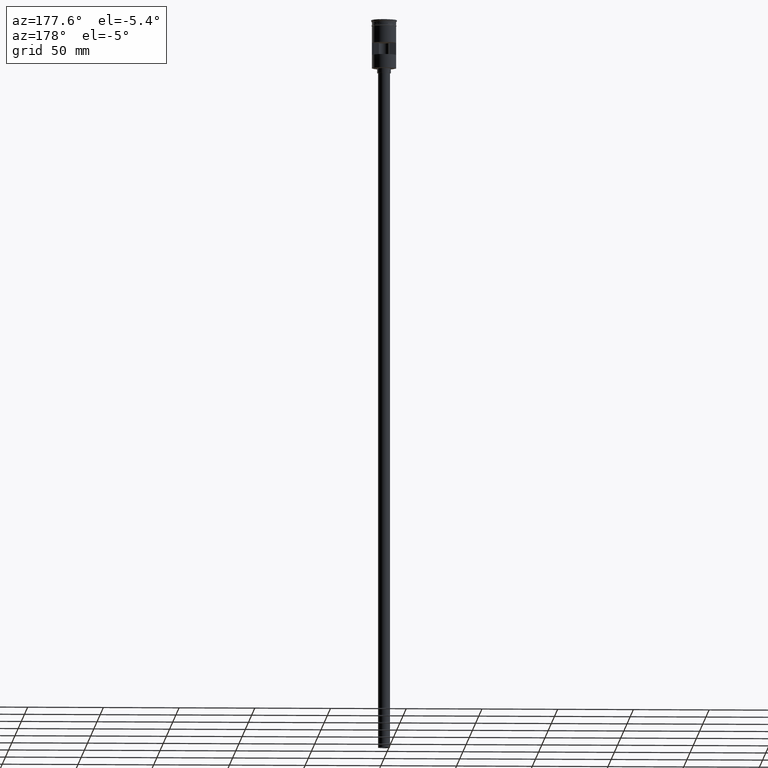
[diagram: clean part render]
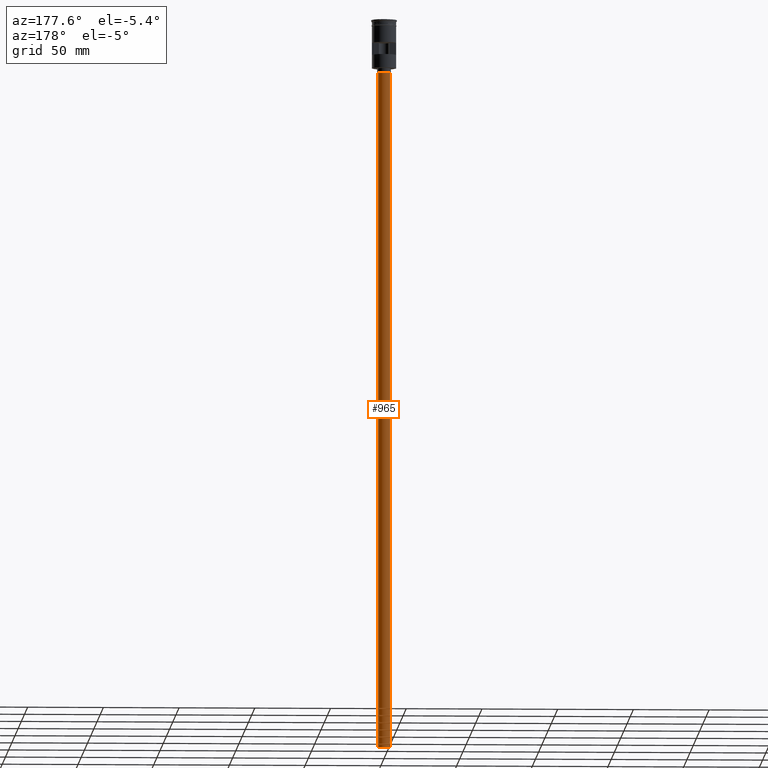
[diagram: same view with one face highlighted and labeled with its STEP entity id]
A machine part, auxiliary view. The second image highlights one B-rep face of the part: STEP entity #965.
In plain terms, the highlighted cylindrical surface (edge-blend (fillet) strip) has radius 4 mm, axis along (-0, -0, 1).
Its self-contained STEP definition (entity closure, byte-faithful):
#37 = CARTESIAN_POINT ( 'NONE',  ( 0.000000000000000000, 0.000000000000000000, -482.0000000000000000 ) ) ;
#52 = VECTOR ( 'NONE', #914, 1000.000000000000000 ) ;
#55 = DIRECTION ( 'NONE',  ( -1.000000000000000000, 0.000000000000000000, 0.000000000000000000 ) ) ;
#91 = CARTESIAN_POINT ( 'NONE',  ( 4.000000000000000000, 0.000000000000000000, -482.0000000000000000 ) ) ;
#110 = AXIS2_PLACEMENT_3D ( 'NONE', #1524, #299, #294 ) ;
#276 = DIRECTION ( 'NONE',  ( -1.000000000000000000, 0.000000000000000000, 0.000000000000000000 ) ) ;
#277 = CYLINDRICAL_SURFACE ( 'NONE', #110, 4.000000000000000000 ) ;
#294 = DIRECTION ( 'NONE',  ( 1.000000000000000000, 0.000000000000000000, 0.000000000000000000 ) ) ;
#299 = DIRECTION ( 'NONE',  ( -0.000000000000000000, -0.000000000000000000, 1.000000000000000000 ) ) ;
#337 = VECTOR ( 'NONE', #1353, 1000.000000000000000 ) ;
#397 = VERTEX_POINT ( 'NONE', #697 ) ;
#441 = AXIS2_PLACEMENT_3D ( 'NONE', #37, #649, #276 ) ;
#493 = CIRCLE ( 'NONE', #441, 4.000000000000000000 ) ;
#519 = FACE_OUTER_BOUND ( 'NONE', #1060, .T. ) ;
#549 = VERTEX_POINT ( 'NONE', #1134 ) ;
#578 = LINE ( 'NONE', #91, #52 ) ;
#598 = CIRCLE ( 'NONE', #1578, 4.000000000000000000 ) ;
#649 = DIRECTION ( 'NONE',  ( 0.000000000000000000, 0.000000000000000000, -1.000000000000000000 ) ) ;
#658 = CARTESIAN_POINT ( 'NONE',  ( 0.000000000000000000, 0.000000000000000000, -35.00000000000000000 ) ) ;
#680 = DIRECTION ( 'NONE',  ( 0.000000000000000000, 0.000000000000000000, -1.000000000000000000 ) ) ;
#697 = CARTESIAN_POINT ( 'NONE',  ( 4.000000000000000000, 0.000000000000000000, -482.0000000000000000 ) ) ;
#714 = VERTEX_POINT ( 'NONE', #1544 ) ;
#725 = EDGE_CURVE ( 'NONE', #397, #714, #578, .T. ) ;
#896 = ORIENTED_EDGE ( 'NONE', *, *, #725, .F. ) ;
#914 = DIRECTION ( 'NONE',  ( -0.000000000000000000, -0.000000000000000000, 1.000000000000000000 ) ) ;
#917 = ORIENTED_EDGE ( 'NONE', *, *, #1485, .T. ) ;
#938 = LINE ( 'NONE', #1192, #337 ) ;
#965 = ADVANCED_FACE ( 'NONE', ( #519 ), #277, .T. ) ;
#997 = VERTEX_POINT ( 'NONE', #1003 ) ;
#1003 = CARTESIAN_POINT ( 'NONE',  ( -4.000000000000000000, 4.898587196589412829E-16, -35.00000000000000000 ) ) ;
#1060 = EDGE_LOOP ( 'NONE', ( #1527, #1189, #917, #896 ) ) ;
#1134 = CARTESIAN_POINT ( 'NONE',  ( -4.000000000000000000, 4.898587196589412829E-16, -482.0000000000000000 ) ) ;
#1176 = EDGE_CURVE ( 'NONE', #549, #997, #938, .T. ) ;
#1189 = ORIENTED_EDGE ( 'NONE', *, *, #1176, .T. ) ;
#1192 = CARTESIAN_POINT ( 'NONE',  ( -4.000000000000000000, 4.898587196589412829E-16, -482.0000000000000000 ) ) ;
#1353 = DIRECTION ( 'NONE',  ( -0.000000000000000000, -0.000000000000000000, 1.000000000000000000 ) ) ;
#1381 = EDGE_CURVE ( 'NONE', #549, #397, #493, .T. ) ;
#1485 = EDGE_CURVE ( 'NONE', #997, #714, #598, .T. ) ;
#1524 = CARTESIAN_POINT ( 'NONE',  ( 0.000000000000000000, 0.000000000000000000, -482.0000000000000000 ) ) ;
#1527 = ORIENTED_EDGE ( 'NONE', *, *, #1381, .F. ) ;
#1544 = CARTESIAN_POINT ( 'NONE',  ( 4.000000000000000000, 0.000000000000000000, -35.00000000000000000 ) ) ;
#1578 = AXIS2_PLACEMENT_3D ( 'NONE', #658, #680, #55 ) ;